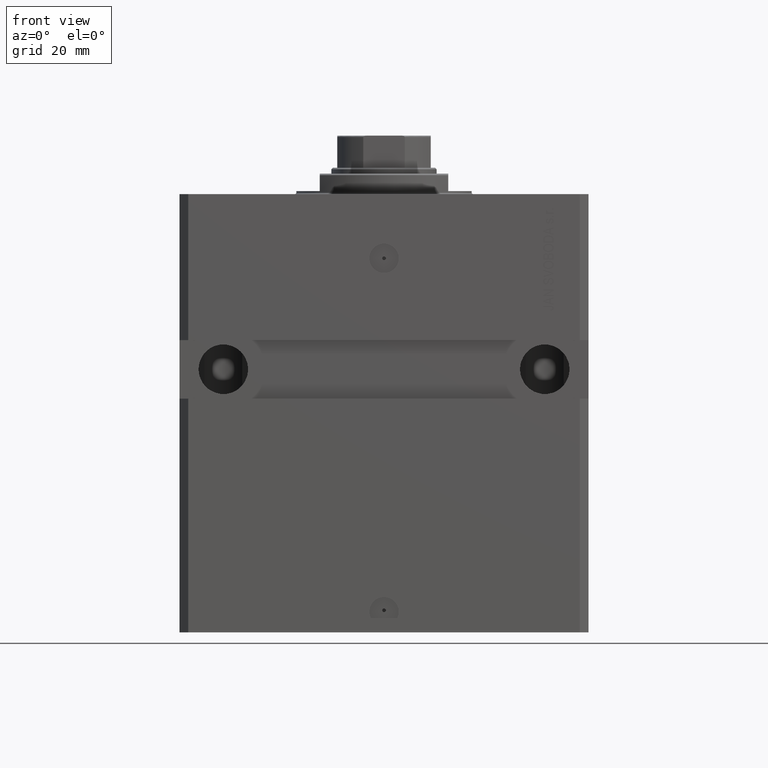
[diagram: clean part render]
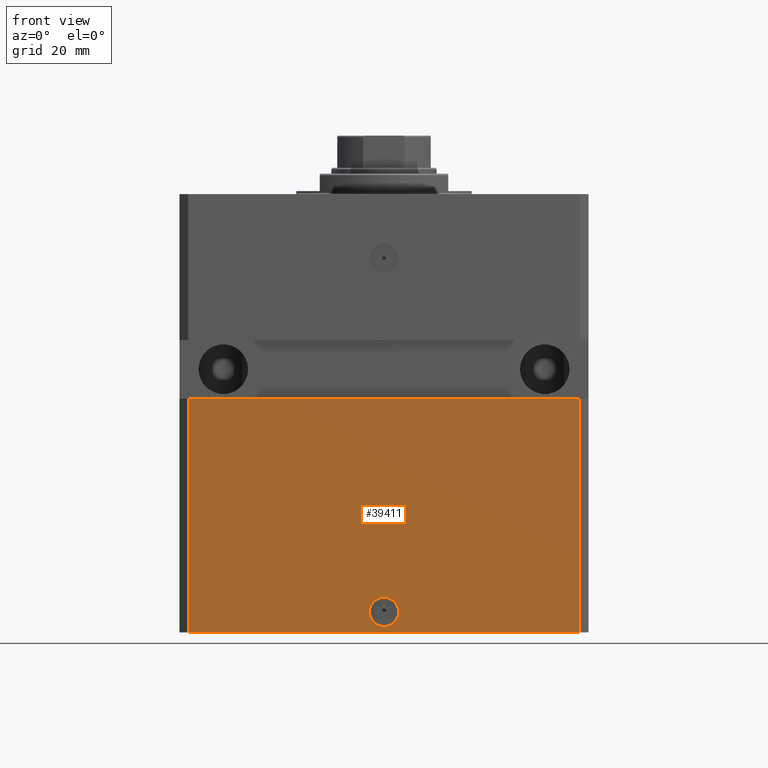
[diagram: same view with one face highlighted and labeled with its STEP entity id]
A machine part, front view. The second image highlights one B-rep face of the part: STEP entity #39411.
In plain terms, the highlighted planar face has unit normal (0, -1, 0).
Its self-contained STEP definition (entity closure, byte-faithful):
#343 = ORIENTED_EDGE ( 'NONE', *, *, #28996, .F. ) ;
#1102 = VERTEX_POINT ( 'NONE', #13685 ) ;
#3719 = CARTESIAN_POINT ( 'NONE',  ( 67.00000000000001421, -54.99999999999997868, -150.0000000000000000 ) ) ;
#5671 = DIRECTION ( 'NONE',  ( 0.000000000000000000, 0.000000000000000000, 1.000000000000000000 ) ) ;
#5820 = CARTESIAN_POINT ( 'NONE',  ( -67.00000000000002842, -54.99999999999999289, -70.00000000000000000 ) ) ;
#6996 = AXIS2_PLACEMENT_3D ( 'NONE', #12923, #9469, #27970 ) ;
#8461 = ORIENTED_EDGE ( 'NONE', *, *, #29891, .T. ) ;
#8689 = VERTEX_POINT ( 'NONE', #13904 ) ;
#9469 = DIRECTION ( 'NONE',  ( 1.176083712526788232E-16, -1.000000000000000000, 0.000000000000000000 ) ) ;
#9658 = VERTEX_POINT ( 'NONE', #41080 ) ;
#10590 = LINE ( 'NONE', #25649, #20574 ) ;
#11077 = CARTESIAN_POINT ( 'NONE',  ( 8.544160404064867231E-15, -54.99999999999998579, -143.0000000000000000 ) ) ;
#11308 = EDGE_LOOP ( 'NONE', ( #343, #33693, #14051, #8461 ) ) ;
#11321 = DIRECTION ( 'NONE',  ( 1.176083712526788232E-16, -1.000000000000000000, 0.000000000000000000 ) ) ;
#11599 = EDGE_CURVE ( 'NONE', #47696, #8689, #34670, .T. ) ;
#12848 = EDGE_CURVE ( 'NONE', #8689, #47696, #36189, .T. ) ;
#12923 = CARTESIAN_POINT ( 'NONE',  ( 8.544160404064867231E-15, -54.99999999999998579, -143.0000000000000000 ) ) ;
#13685 = CARTESIAN_POINT ( 'NONE',  ( -67.00000000000001421, -55.00000000000000000, -150.0000000000000000 ) ) ;
#13696 = ORIENTED_EDGE ( 'NONE', *, *, #12848, .F. ) ;
#13904 = CARTESIAN_POINT ( 'NONE',  ( 5.000000000000015099, -54.99999999999998579, -143.0000000000000000 ) ) ;
#14051 = ORIENTED_EDGE ( 'NONE', *, *, #41390, .T. ) ;
#14926 = AXIS2_PLACEMENT_3D ( 'NONE', #11077, #11321, #18739 ) ;
#15018 = LINE ( 'NONE', #15729, #37234 ) ;
#15550 = VERTEX_POINT ( 'NONE', #5820 ) ;
#15729 = CARTESIAN_POINT ( 'NONE',  ( -67.00000000000001421, -55.00000000000000000, -150.0000000000000000 ) ) ;
#18739 = DIRECTION ( 'NONE',  ( 1.000000000000000000, 0.000000000000000000, 0.000000000000000000 ) ) ;
#20574 = VECTOR ( 'NONE', #5671, 1000.000000000000000 ) ;
#21911 = LINE ( 'NONE', #40417, #47205 ) ;
#25649 = CARTESIAN_POINT ( 'NONE',  ( -67.00000000000001421, -55.00000000000000000, -150.0000000000000000 ) ) ;
#27548 = EDGE_LOOP ( 'NONE', ( #13696, #35426 ) ) ;
#27705 = AXIS2_PLACEMENT_3D ( 'NONE', #29724, #29485, #37379 ) ;
#27970 = DIRECTION ( 'NONE',  ( 1.000000000000000000, 0.000000000000000000, 0.000000000000000000 ) ) ;
#28996 = EDGE_CURVE ( 'NONE', #15550, #9658, #21911, .T. ) ;
#29129 = CARTESIAN_POINT ( 'NONE',  ( 67.00000000000001421, -54.99999999999997868, -150.0000000000000000 ) ) ;
#29250 = PLANE ( 'NONE',  #27705 ) ;
#29485 = DIRECTION ( 'NONE',  ( 1.553483709829976241E-16, -1.000000000000000000, 0.000000000000000000 ) ) ;
#29724 = CARTESIAN_POINT ( 'NONE',  ( -67.00000000000001421, -55.00000000000000000, -150.0000000000000000 ) ) ;
#29891 = EDGE_CURVE ( 'NONE', #41096, #9658, #40481, .T. ) ;
#30206 = FACE_BOUND ( 'NONE', #27548, .T. ) ;
#31446 = VECTOR ( 'NONE', #32583, 1000.000000000000000 ) ;
#32583 = DIRECTION ( 'NONE',  ( 0.000000000000000000, 0.000000000000000000, 1.000000000000000000 ) ) ;
#33488 = DIRECTION ( 'NONE',  ( 1.000000000000000000, 9.912705577010323084E-17, 0.000000000000000000 ) ) ;
#33693 = ORIENTED_EDGE ( 'NONE', *, *, #37793, .F. ) ;
#34670 = CIRCLE ( 'NONE', #6996, 5.000000000000006217 ) ;
#35426 = ORIENTED_EDGE ( 'NONE', *, *, #11599, .F. ) ;
#35845 = CARTESIAN_POINT ( 'NONE',  ( -4.999999999999997335, -54.99999999999998579, -143.0000000000000000 ) ) ;
#36189 = CIRCLE ( 'NONE', #14926, 5.000000000000006217 ) ;
#37137 = FACE_OUTER_BOUND ( 'NONE', #11308, .T. ) ;
#37234 = VECTOR ( 'NONE', #45361, 1000.000000000000000 ) ;
#37379 = DIRECTION ( 'NONE',  ( 1.000000000000000000, 1.553483709829976241E-16, 0.000000000000000000 ) ) ;
#37793 = EDGE_CURVE ( 'NONE', #1102, #15550, #10590, .T. ) ;
#39411 = ADVANCED_FACE ( 'NONE', ( #30206, #37137 ), #29250, .T. ) ;
#40417 = CARTESIAN_POINT ( 'NONE',  ( -70.00000000000001421, -54.99999999999999289, -70.00000000000000000 ) ) ;
#40481 = LINE ( 'NONE', #29129, #31446 ) ;
#41080 = CARTESIAN_POINT ( 'NONE',  ( 67.00000000000001421, -54.99999999999997868, -70.00000000000000000 ) ) ;
#41096 = VERTEX_POINT ( 'NONE', #3719 ) ;
#41390 = EDGE_CURVE ( 'NONE', #1102, #41096, #15018, .T. ) ;
#45361 = DIRECTION ( 'NONE',  ( 1.000000000000000000, 1.553483709829976241E-16, 0.000000000000000000 ) ) ;
#47205 = VECTOR ( 'NONE', #33488, 1000.000000000000000 ) ;
#47696 = VERTEX_POINT ( 'NONE', #35845 ) ;